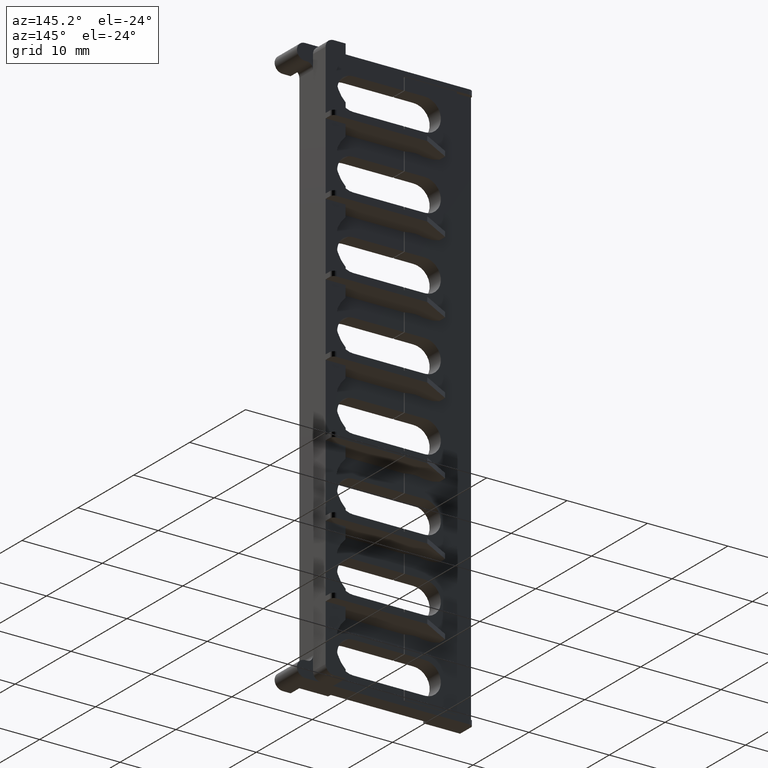
[diagram: clean part render]
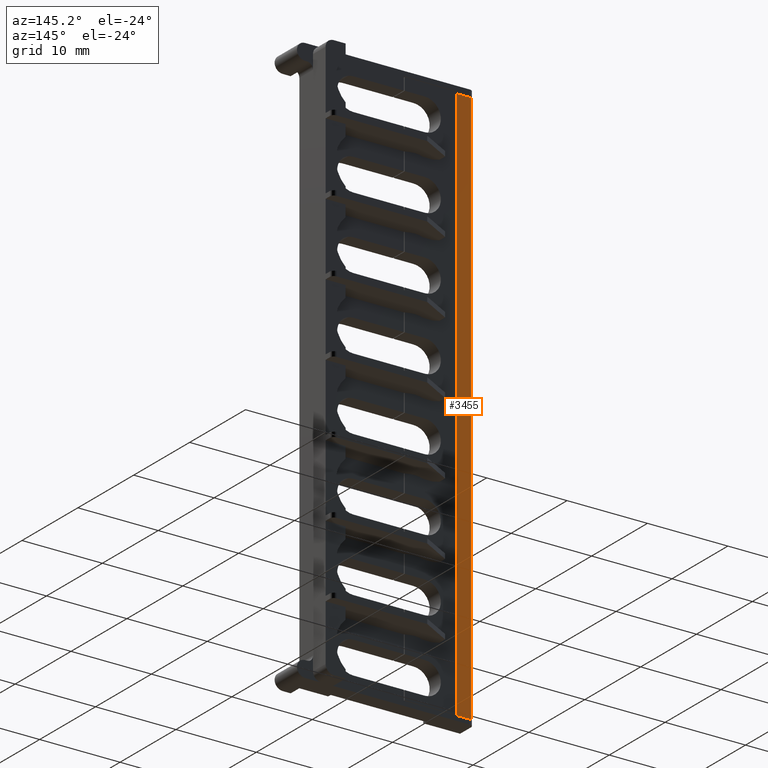
[diagram: same view with one face highlighted and labeled with its STEP entity id]
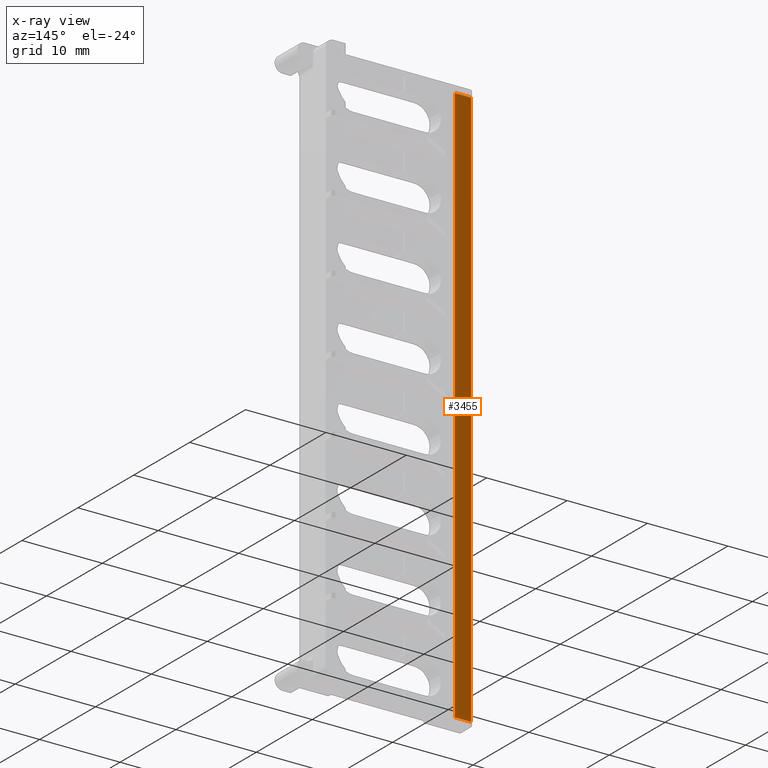
[diagram: x-ray of the same camera — body ghosted, the highlighted face saturated]
A machine part, auxiliary view. The second image highlights one B-rep face of the part: STEP entity #3455.
The next image is the same camera in x-ray: the body ghosted, the highlighted face saturated — about 0% of this face is hidden behind the body in this view.
In plain terms, the highlighted planar face has unit normal (-0, 1, -0).
Its self-contained STEP definition (entity closure, byte-faithful):
#22 = VECTOR ( 'NONE', #8257, 1000.000000000000000 ) ;
#169 = VECTOR ( 'NONE', #8532, 1000.000000000000000 ) ;
#480 = AXIS2_PLACEMENT_3D ( 'NONE', #5384, #5385, #5333 ) ;
#609 = VECTOR ( 'NONE', #4983, 1000.000000000000000 ) ;
#809 = VECTOR ( 'NONE', #8098, 1000.000000000000000 ) ;
#882 = VERTEX_POINT ( 'NONE', #6690 ) ;
#910 = VERTEX_POINT ( 'NONE', #6777 ) ;
#914 = VERTEX_POINT ( 'NONE', #6746 ) ;
#921 = VERTEX_POINT ( 'NONE', #6784 ) ;
#2233 = ORIENTED_EDGE ( 'NONE', *, *, #3767, .T. ) ;
#2235 = ORIENTED_EDGE ( 'NONE', *, *, #3911, .F. ) ;
#2269 = ORIENTED_EDGE ( 'NONE', *, *, #3822, .T. ) ;
#2273 = ORIENTED_EDGE ( 'NONE', *, *, #3607, .T. ) ;
#3455 = ADVANCED_FACE ( 'NONE', ( #5383 ), #5336, .T. ) ;
#3607 = EDGE_CURVE ( 'NONE', #882, #921, #4964, .T. ) ;
#3767 = EDGE_CURVE ( 'NONE', #921, #910, #8063, .T. ) ;
#3822 = EDGE_CURVE ( 'NONE', #914, #882, #8255, .T. ) ;
#3911 = EDGE_CURVE ( 'NONE', #914, #910, #8554, .T. ) ;
#4964 = LINE ( 'NONE', #4965, #609 ) ;
#4965 = CARTESIAN_POINT ( 'NONE',  ( 446.1252094327938400, 145.5878730676890000, 1.200000000000048100 ) ) ;
#4983 = DIRECTION ( 'NONE',  ( -0.0000000000000000000, -2.733577826868160200E-020, -1.000000000000000000 ) ) ;
#5333 = DIRECTION ( 'NONE',  ( 0.0000000000000000000, 2.733577826868160200E-020, 1.000000000000000000 ) ) ;
#5336 = PLANE ( 'NONE',  #480 ) ;
#5383 = FACE_OUTER_BOUND ( 'NONE', #6526, .T. ) ;
#5384 = CARTESIAN_POINT ( 'NONE',  ( 444.1252094327941800, 145.5878730676890000, 1.200000000000048100 ) ) ;
#5385 = DIRECTION ( 'NONE',  ( -2.530253133731424900E-033, 1.000000000000000000, -2.733577826868160200E-020 ) ) ;
#6526 = EDGE_LOOP ( 'NONE', ( #2235, #2269, #2273, #2233 ) ) ;
#6690 = CARTESIAN_POINT ( 'NONE',  ( 446.1252094327938400, 145.5878730676890000, 70.99999999999847900 ) ) ;
#6746 = CARTESIAN_POINT ( 'NONE',  ( 444.1252094327941200, 145.5878730676890000, 70.99999999999847900 ) ) ;
#6777 = CARTESIAN_POINT ( 'NONE',  ( 444.1252094327942400, 145.5878730676890000, 1.200000000000049500 ) ) ;
#6784 = CARTESIAN_POINT ( 'NONE',  ( 446.1252094327938900, 145.5878730676890000, 1.200000000000048100 ) ) ;
#8063 = LINE ( 'NONE', #8067, #809 ) ;
#8067 = CARTESIAN_POINT ( 'NONE',  ( 444.1252094327941800, 145.5878730676890000, 1.200000000000048100 ) ) ;
#8098 = DIRECTION ( 'NONE',  ( -1.000000000000000000, -2.530253133731424900E-033, 6.916643862731900400E-053 ) ) ;
#8255 = LINE ( 'NONE', #8256, #22 ) ;
#8256 = CARTESIAN_POINT ( 'NONE',  ( 444.1252094327941800, 145.5878730676890000, 70.99999999999847900 ) ) ;
#8257 = DIRECTION ( 'NONE',  ( 1.000000000000000000, 2.530253133731424900E-033, -6.916643862731900400E-053 ) ) ;
#8531 = CARTESIAN_POINT ( 'NONE',  ( 444.1252094327941800, 145.5878730676890000, 34.60000000000000100 ) ) ;
#8532 = DIRECTION ( 'NONE',  ( 3.492165866658390800E-015, -0.0000000000000000000, -1.000000000000000000 ) ) ;
#8554 = LINE ( 'NONE', #8531, #169 ) ;